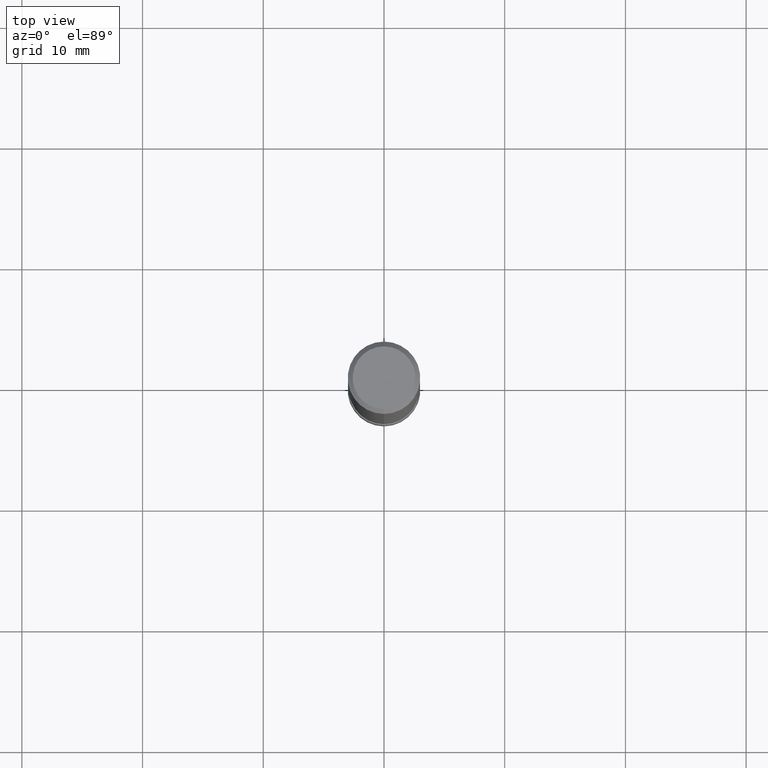
[diagram: clean part render]
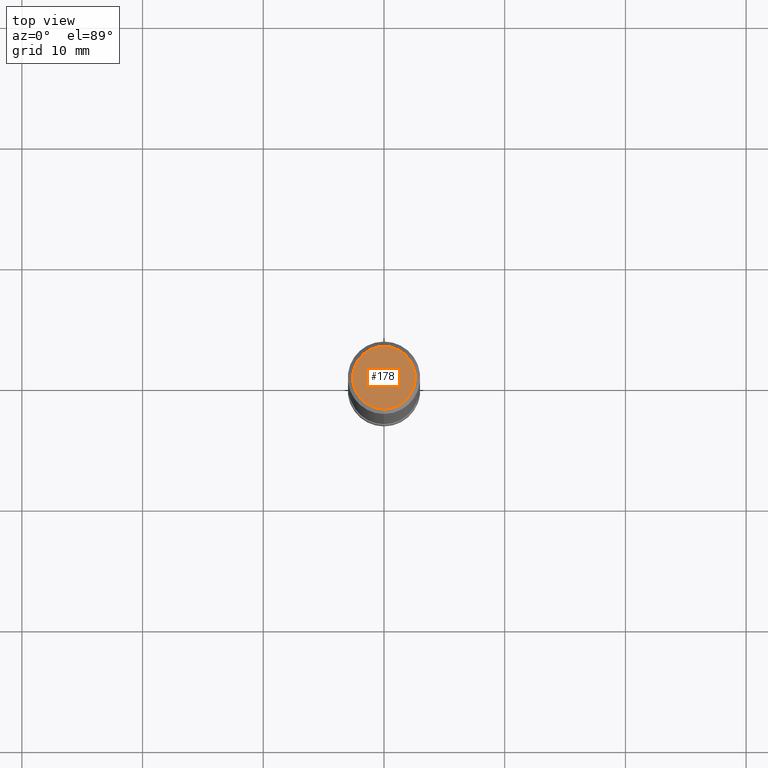
[diagram: same view with one face highlighted and labeled with its STEP entity id]
A machine part, top view. The second image highlights one B-rep face of the part: STEP entity #178.
In plain terms, the highlighted planar face has unit normal (-0, 0, 1).
Its self-contained STEP definition (entity closure, byte-faithful):
#114=VERTEX_POINT('',#252);
#124=EDGE_CURVE('',#114,#138,#265,.T.);
#138=VERTEX_POINT('',#280);
#178=ADVANCED_FACE('',(#326),#327,.T.);
#206=EDGE_CURVE('',#138,#114,#359,.T.);
#252=CARTESIAN_POINT('',(3.18397651993818E-016,-2.6,0.0));
#265=CIRCLE('',#422,2.6);
#280=CARTESIAN_POINT('',(0.0,2.6,0.0));
#326=FACE_OUTER_BOUND('',#492,.T.);
#327=PLANE('',#493);
#359=CIRCLE('',#535,2.6);
#422=AXIS2_PLACEMENT_3D('',#593,#594,#595);
#492=EDGE_LOOP('',(#670,#671));
#493=AXIS2_PLACEMENT_3D('',#672,#673,#674);
#535=AXIS2_PLACEMENT_3D('',#710,#711,#712);
#593=CARTESIAN_POINT('',(0.0,0.0,0.0));
#594=DIRECTION('',(0.0,0.0,-1.0));
#595=DIRECTION('',(0.0,1.0,0.0));
#670=ORIENTED_EDGE('',*,*,#206,.F.);
#671=ORIENTED_EDGE('',*,*,#124,.F.);
#672=CARTESIAN_POINT('',(0.0,1.3,0.0));
#673=DIRECTION('',(-0.0,0.0,1.0));
#674=DIRECTION('',(0.0,-1.0,0.0));
#710=CARTESIAN_POINT('',(0.0,0.0,0.0));
#711=DIRECTION('',(0.0,0.0,-1.0));
#712=DIRECTION('',(0.0,1.0,0.0));